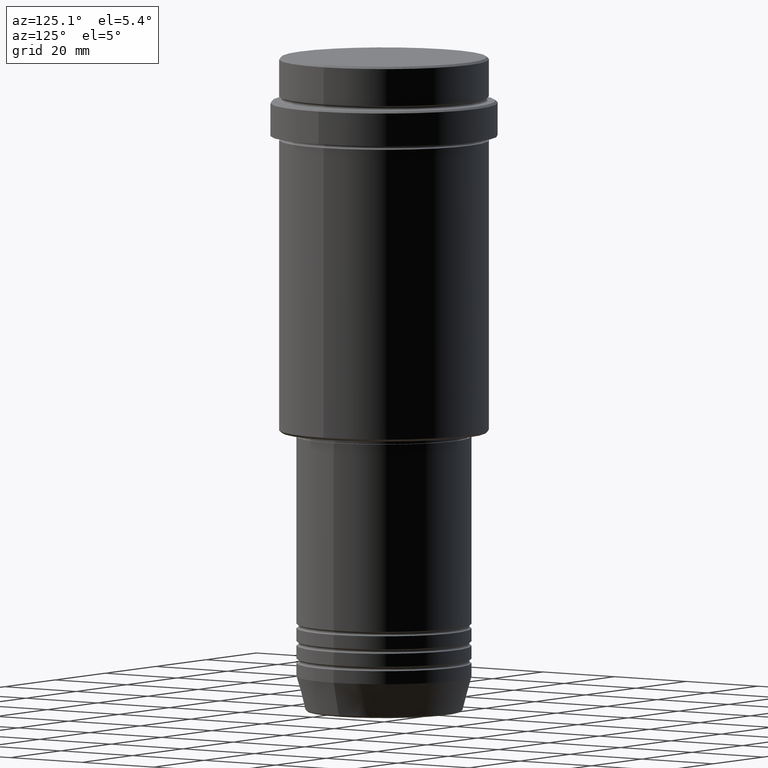
[diagram: clean part render]
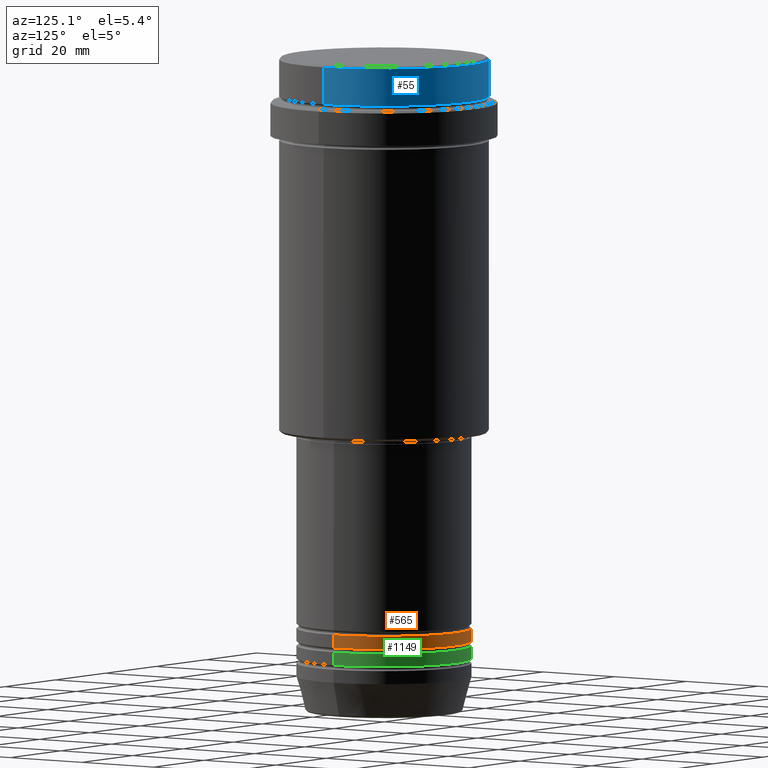
[diagram: same view with three faces highlighted in distinct colors, each labeled with its STEP entity id]
A machine part, auxiliary view with three faces highlighted in distinct colors.
Their STEP definitions:

[orange] entity #565 — the highlighted cylindrical surface (partial cylindrical patch) has radius 20 mm, axis along (-0, -0, 1).
#22 = VECTOR ( 'NONE', #41, 1000.000000000000000 ) ;
#41 = DIRECTION ( 'NONE',  ( -0.000000000000000000, -0.000000000000000000, 1.000000000000000000 ) ) ;
#57 = CYLINDRICAL_SURFACE ( 'NONE', #595, 20.00000000000000000 ) ;
#136 = ORIENTED_EDGE ( 'NONE', *, *, #1356, .T. ) ;
#193 = ORIENTED_EDGE ( 'NONE', *, *, #838, .F. ) ;
#199 = DIRECTION ( 'NONE',  ( -0.000000000000000000, -0.000000000000000000, 1.000000000000000000 ) ) ;
#263 = CIRCLE ( 'NONE', #455, 20.00000000000000000 ) ;
#295 = DIRECTION ( 'NONE',  ( 1.000000000000000000, 0.000000000000000000, 0.000000000000000000 ) ) ;
#455 = AXIS2_PLACEMENT_3D ( 'NONE', #734, #199, #633 ) ;
#524 = CARTESIAN_POINT ( 'NONE',  ( 20.00000000000000000, 0.000000000000000000, -130.9999999999998863 ) ) ;
#544 = LINE ( 'NONE', #564, #22 ) ;
#564 = CARTESIAN_POINT ( 'NONE',  ( -20.00000000000000000, 2.449293598294706513E-15, 0.000000000000000000 ) ) ;
#565 = ADVANCED_FACE ( 'NONE', ( #1267 ), #57, .T. ) ;
#595 = AXIS2_PLACEMENT_3D ( 'NONE', #922, #807, #295 ) ;
#633 = DIRECTION ( 'NONE',  ( 1.000000000000000000, 0.000000000000000000, 0.000000000000000000 ) ) ;
#677 = ORIENTED_EDGE ( 'NONE', *, *, #903, .T. ) ;
#704 = VECTOR ( 'NONE', #1366, 1000.000000000000000 ) ;
#734 = CARTESIAN_POINT ( 'NONE',  ( 0.000000000000000000, 0.000000000000000000, -130.9999999999998863 ) ) ;
#807 = DIRECTION ( 'NONE',  ( -0.000000000000000000, -0.000000000000000000, 1.000000000000000000 ) ) ;
#830 = EDGE_LOOP ( 'NONE', ( #677, #136, #1058, #193 ) ) ;
#838 = EDGE_CURVE ( 'NONE', #1321, #992, #957, .T. ) ;
#903 = EDGE_CURVE ( 'NONE', #1321, #1299, #1364, .T. ) ;
#922 = CARTESIAN_POINT ( 'NONE',  ( 0.000000000000000000, 0.000000000000000000, 0.000000000000000000 ) ) ;
#957 = LINE ( 'NONE', #1382, #704 ) ;
#984 = DIRECTION ( 'NONE',  ( -0.000000000000000000, -0.000000000000000000, 1.000000000000000000 ) ) ;
#992 = VERTEX_POINT ( 'NONE', #524 ) ;
#993 = EDGE_CURVE ( 'NONE', #992, #1061, #263, .T. ) ;
#1058 = ORIENTED_EDGE ( 'NONE', *, *, #993, .F. ) ;
#1061 = VERTEX_POINT ( 'NONE', #1388 ) ;
#1178 = CARTESIAN_POINT ( 'NONE',  ( -20.00000000000000000, 2.449293598294706513E-15, -133.9999999999998863 ) ) ;
#1267 = FACE_OUTER_BOUND ( 'NONE', #830, .T. ) ;
#1299 = VERTEX_POINT ( 'NONE', #1178 ) ;
#1321 = VERTEX_POINT ( 'NONE', #1401 ) ;
#1356 = EDGE_CURVE ( 'NONE', #1299, #1061, #544, .T. ) ;
#1364 = CIRCLE ( 'NONE', #1396, 20.00000000000000000 ) ;
#1366 = DIRECTION ( 'NONE',  ( -0.000000000000000000, -0.000000000000000000, 1.000000000000000000 ) ) ;
#1382 = CARTESIAN_POINT ( 'NONE',  ( 20.00000000000000000, 0.000000000000000000, 0.000000000000000000 ) ) ;
#1388 = CARTESIAN_POINT ( 'NONE',  ( -20.00000000000000000, 2.449293598294706513E-15, -130.9999999999998863 ) ) ;
#1395 = DIRECTION ( 'NONE',  ( 1.000000000000000000, 0.000000000000000000, 0.000000000000000000 ) ) ;
#1396 = AXIS2_PLACEMENT_3D ( 'NONE', #1400, #984, #1395 ) ;
#1400 = CARTESIAN_POINT ( 'NONE',  ( 0.000000000000000000, 0.000000000000000000, -133.9999999999998863 ) ) ;
#1401 = CARTESIAN_POINT ( 'NONE',  ( 20.00000000000000000, 0.000000000000000000, -133.9999999999998863 ) ) ;

[blue] entity #55 — the highlighted cylindrical surface (partial cylindrical patch) has radius 24 mm, axis along (-0, -0, 1).
#55 = ADVANCED_FACE ( 'NONE', ( #1029 ), #496, .T. ) ;
#91 = DIRECTION ( 'NONE',  ( 0.000000000000000000, 0.000000000000000000, -1.000000000000000000 ) ) ;
#153 = ORIENTED_EDGE ( 'NONE', *, *, #926, .T. ) ;
#154 = DIRECTION ( 'NONE',  ( -0.000000000000000000, -0.000000000000000000, 1.000000000000000000 ) ) ;
#218 = VERTEX_POINT ( 'NONE', #1316 ) ;
#318 = CARTESIAN_POINT ( 'NONE',  ( 0.000000000000000000, 0.000000000000000000, -0.5000000000000419664 ) ) ;
#348 = VECTOR ( 'NONE', #548, 1000.000000000000000 ) ;
#389 = AXIS2_PLACEMENT_3D ( 'NONE', #318, #91, #1397 ) ;
#428 = ORIENTED_EDGE ( 'NONE', *, *, #1236, .T. ) ;
#482 = EDGE_CURVE ( 'NONE', #1056, #218, #1235, .T. ) ;
#496 = CYLINDRICAL_SURFACE ( 'NONE', #529, 23.99999999999999289 ) ;
#499 = EDGE_LOOP ( 'NONE', ( #1060, #153, #428, #715 ) ) ;
#529 = AXIS2_PLACEMENT_3D ( 'NONE', #713, #1137, #935 ) ;
#542 = CARTESIAN_POINT ( 'NONE',  ( -23.99999999999999289, 2.939152317953647106E-15, 0.000000000000000000 ) ) ;
#548 = DIRECTION ( 'NONE',  ( -0.000000000000000000, -0.000000000000000000, 1.000000000000000000 ) ) ;
#637 = LINE ( 'NONE', #542, #348 ) ;
#663 = VERTEX_POINT ( 'NONE', #1105 ) ;
#686 = CARTESIAN_POINT ( 'NONE',  ( 23.99999999999999289, 0.000000000000000000, 0.000000000000000000 ) ) ;
#696 = EDGE_CURVE ( 'NONE', #1056, #878, #894, .T. ) ;
#713 = CARTESIAN_POINT ( 'NONE',  ( 0.000000000000000000, 0.000000000000000000, 0.000000000000000000 ) ) ;
#715 = ORIENTED_EDGE ( 'NONE', *, *, #482, .F. ) ;
#717 = CARTESIAN_POINT ( 'NONE',  ( 0.000000000000000000, 0.000000000000000000, -8.999999999999998224 ) ) ;
#724 = DIRECTION ( 'NONE',  ( 1.000000000000000000, 0.000000000000000000, 0.000000000000000000 ) ) ;
#873 = CARTESIAN_POINT ( 'NONE',  ( -23.99999999999998579, 2.939152317953646711E-15, -8.999999999999998224 ) ) ;
#878 = VERTEX_POINT ( 'NONE', #873 ) ;
#894 = CIRCLE ( 'NONE', #1012, 23.99999999999998579 ) ;
#912 = CIRCLE ( 'NONE', #389, 23.99999999999999289 ) ;
#926 = EDGE_CURVE ( 'NONE', #878, #663, #637, .T. ) ;
#935 = DIRECTION ( 'NONE',  ( 1.000000000000000000, 0.000000000000000000, 0.000000000000000000 ) ) ;
#1012 = AXIS2_PLACEMENT_3D ( 'NONE', #717, #1043, #724 ) ;
#1029 = FACE_OUTER_BOUND ( 'NONE', #499, .T. ) ;
#1043 = DIRECTION ( 'NONE',  ( -0.000000000000000000, -0.000000000000000000, 1.000000000000000000 ) ) ;
#1056 = VERTEX_POINT ( 'NONE', #1190 ) ;
#1060 = ORIENTED_EDGE ( 'NONE', *, *, #696, .T. ) ;
#1105 = CARTESIAN_POINT ( 'NONE',  ( -23.99999999999999289, 2.939152317953647106E-15, -0.5000000000000419664 ) ) ;
#1137 = DIRECTION ( 'NONE',  ( -0.000000000000000000, -0.000000000000000000, 1.000000000000000000 ) ) ;
#1190 = CARTESIAN_POINT ( 'NONE',  ( 23.99999999999998579, 0.000000000000000000, -8.999999999999998224 ) ) ;
#1235 = LINE ( 'NONE', #686, #1302 ) ;
#1236 = EDGE_CURVE ( 'NONE', #663, #218, #912, .T. ) ;
#1302 = VECTOR ( 'NONE', #154, 1000.000000000000000 ) ;
#1316 = CARTESIAN_POINT ( 'NONE',  ( 23.99999999999999289, 0.000000000000000000, -0.5000000000000419664 ) ) ;
#1397 = DIRECTION ( 'NONE',  ( 1.000000000000000000, 0.000000000000000000, 0.000000000000000000 ) ) ;

[green] entity #1149 — the highlighted cylindrical surface (partial cylindrical patch) has radius 20 mm, axis along (-0, -0, 1).
#14 = EDGE_CURVE ( 'NONE', #221, #941, #955, .T. ) ;
#26 = CARTESIAN_POINT ( 'NONE',  ( 20.00000000000000000, 0.000000000000000000, -134.9999999999998863 ) ) ;
#38 = ORIENTED_EDGE ( 'NONE', *, *, #1191, .T. ) ;
#76 = ORIENTED_EDGE ( 'NONE', *, *, #14, .T. ) ;
#87 = LINE ( 'NONE', #1287, #1094 ) ;
#94 = CIRCLE ( 'NONE', #1341, 20.00000000000000000 ) ;
#102 = DIRECTION ( 'NONE',  ( -0.000000000000000000, -0.000000000000000000, 1.000000000000000000 ) ) ;
#205 = CARTESIAN_POINT ( 'NONE',  ( 20.00000000000000000, 0.000000000000000000, -137.9999999999998863 ) ) ;
#221 = VERTEX_POINT ( 'NONE', #771 ) ;
#271 = DIRECTION ( 'NONE',  ( -0.000000000000000000, -0.000000000000000000, 1.000000000000000000 ) ) ;
#282 = DIRECTION ( 'NONE',  ( -0.000000000000000000, -0.000000000000000000, 1.000000000000000000 ) ) ;
#302 = AXIS2_PLACEMENT_3D ( 'NONE', #947, #282, #398 ) ;
#359 = CARTESIAN_POINT ( 'NONE',  ( 0.000000000000000000, 0.000000000000000000, -137.9999999999998863 ) ) ;
#398 = DIRECTION ( 'NONE',  ( 1.000000000000000000, 0.000000000000000000, 0.000000000000000000 ) ) ;
#453 = FACE_OUTER_BOUND ( 'NONE', #765, .T. ) ;
#509 = CARTESIAN_POINT ( 'NONE',  ( -20.00000000000000000, 2.449293598294706513E-15, 0.000000000000000000 ) ) ;
#521 = ORIENTED_EDGE ( 'NONE', *, *, #1263, .F. ) ;
#554 = EDGE_CURVE ( 'NONE', #1186, #941, #1184, .T. ) ;
#566 = DIRECTION ( 'NONE',  ( 1.000000000000000000, 0.000000000000000000, 0.000000000000000000 ) ) ;
#592 = AXIS2_PLACEMENT_3D ( 'NONE', #1354, #821, #710 ) ;
#682 = ORIENTED_EDGE ( 'NONE', *, *, #554, .F. ) ;
#710 = DIRECTION ( 'NONE',  ( 1.000000000000000000, 0.000000000000000000, 0.000000000000000000 ) ) ;
#765 = EDGE_LOOP ( 'NONE', ( #38, #76, #682, #521 ) ) ;
#771 = CARTESIAN_POINT ( 'NONE',  ( -20.00000000000000000, 2.449293598294706513E-15, -137.9999999999998863 ) ) ;
#821 = DIRECTION ( 'NONE',  ( -0.000000000000000000, -0.000000000000000000, 1.000000000000000000 ) ) ;
#880 = DIRECTION ( 'NONE',  ( -0.000000000000000000, -0.000000000000000000, 1.000000000000000000 ) ) ;
#932 = CYLINDRICAL_SURFACE ( 'NONE', #592, 20.00000000000000000 ) ;
#941 = VERTEX_POINT ( 'NONE', #980 ) ;
#947 = CARTESIAN_POINT ( 'NONE',  ( 0.000000000000000000, 0.000000000000000000, -134.9999999999998863 ) ) ;
#955 = LINE ( 'NONE', #509, #1026 ) ;
#980 = CARTESIAN_POINT ( 'NONE',  ( -20.00000000000000000, 2.449293598294706513E-15, -134.9999999999998863 ) ) ;
#1026 = VECTOR ( 'NONE', #271, 1000.000000000000000 ) ;
#1094 = VECTOR ( 'NONE', #102, 1000.000000000000000 ) ;
#1149 = ADVANCED_FACE ( 'NONE', ( #453 ), #932, .T. ) ;
#1184 = CIRCLE ( 'NONE', #302, 20.00000000000000000 ) ;
#1186 = VERTEX_POINT ( 'NONE', #26 ) ;
#1191 = EDGE_CURVE ( 'NONE', #1268, #221, #94, .T. ) ;
#1263 = EDGE_CURVE ( 'NONE', #1268, #1186, #87, .T. ) ;
#1268 = VERTEX_POINT ( 'NONE', #205 ) ;
#1287 = CARTESIAN_POINT ( 'NONE',  ( 20.00000000000000000, 0.000000000000000000, 0.000000000000000000 ) ) ;
#1341 = AXIS2_PLACEMENT_3D ( 'NONE', #359, #880, #566 ) ;
#1354 = CARTESIAN_POINT ( 'NONE',  ( 0.000000000000000000, 0.000000000000000000, 0.000000000000000000 ) ) ;